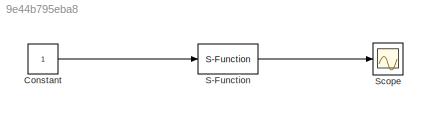
MODEL slx_9e44b795eba8
KIND model
BLOCK [Constant] Constant
BLOCK [S-Function] S-Function
  EnableBusSupport = off
  FunctionName = int_hyo
  Ports = [1, 1]
BLOCK [Scope] Scope
  DataFormat = StructureWithTime
  Floating = off
  NumInputPorts = 1
  Ports = [1]
  SampleTime = 0
  ShowLegends = off
LINE Constant:1 -> S-Function:1
LINE S-Function:1 -> Scope:1
